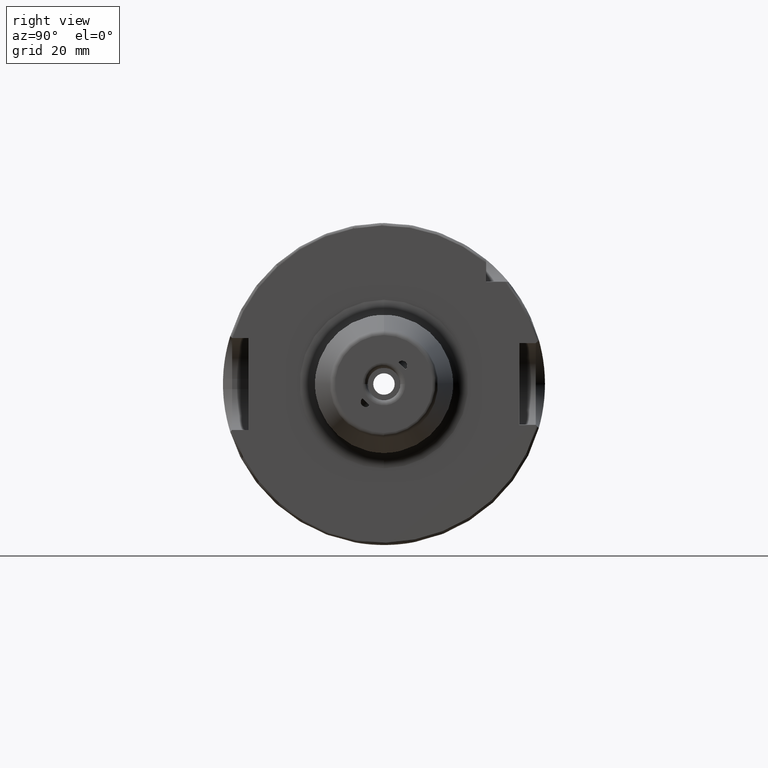
[diagram: clean part render]
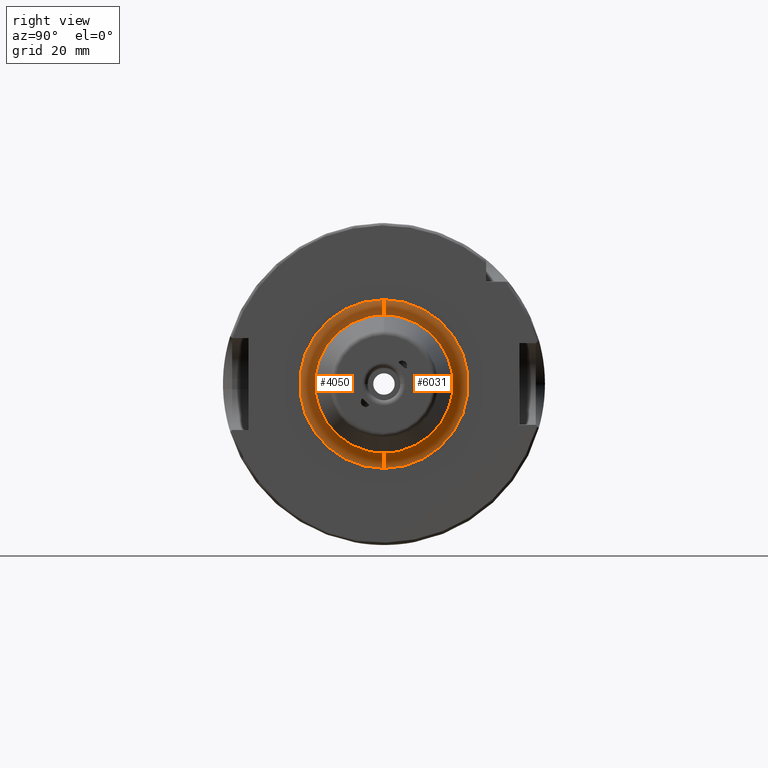
[diagram: same view with one multi-face feature highlighted, each face labeled with its STEP entity id]
A machine part, right view. The highlighted faces form ONE feature: a constant-radius fillet chain: 2 tangent blend faces with common blend radius 3 mm. The faces share edges in the B-rep.
Their STEP definitions:
[1] entity #6031 (Torus):
#643=CARTESIAN_POINT('',(2.9E1,0.E0,0.E0));
#644=DIRECTION('',(1.E0,0.E0,0.E0));
#645=DIRECTION('',(0.E0,0.E0,-1.E0));
#646=AXIS2_PLACEMENT_3D('',#643,#644,#645);
#831=CARTESIAN_POINT('',(2.9E1,8.856360089737E-12,1.65E1));
#832=DIRECTION('',(0.E0,-1.E0,5.367477295959E-13));
#833=DIRECTION('',(-1.E0,0.E0,-6.454096516488E-13));
#834=AXIS2_PLACEMENT_3D('',#831,#832,#833);
#881=CARTESIAN_POINT('',(2.6E1,0.E0,0.E0));
#882=DIRECTION('',(1.E0,0.E0,0.E0));
#883=DIRECTION('',(0.E0,0.E0,-1.E0));
#884=AXIS2_PLACEMENT_3D('',#881,#882,#883);
#2561=CARTESIAN_POINT('',(2.9E1,-8.858414002333E-12,-1.65E1));
#2562=DIRECTION('',(0.E0,1.E0,-5.368726296862E-13));
#2563=DIRECTION('',(-1.E0,0.E0,6.454096516488E-13));
#2564=AXIS2_PLACEMENT_3D('',#2561,#2562,#2563);
#3118=CARTESIAN_POINT('',(2.6E1,0.E0,1.65E1));
#3119=CARTESIAN_POINT('',(2.6E1,0.E0,-1.65E1));
#3120=VERTEX_POINT('',#3118);
#3121=VERTEX_POINT('',#3119);
#3122=CARTESIAN_POINT('',(2.9E1,0.E0,1.35E1));
#3123=CARTESIAN_POINT('',(2.9E1,0.E0,-1.35E1));
#3124=VERTEX_POINT('',#3122);
#3125=VERTEX_POINT('',#3123);
#6020=CARTESIAN_POINT('',(2.9E1,0.E0,0.E0));
#6021=DIRECTION('',(1.E0,0.E0,0.E0));
#6022=DIRECTION('',(0.E0,-1.653192326116E-2,-9.998633384184E-1));
#6023=AXIS2_PLACEMENT_3D('',#6020,#6021,#6022);
#6024=TOROIDAL_SURFACE('',#6023,1.65E1,3.E0);
#6025=ORIENTED_EDGE('',*,*,#4085,.F.);
#6026=ORIENTED_EDGE('',*,*,#4046,.T.);
#6027=ORIENTED_EDGE('',*,*,#3859,.T.);
#6028=ORIENTED_EDGE('',*,*,#4043,.F.);
#6029=EDGE_LOOP('',(#6025,#6026,#6027,#6028));
#6030=FACE_OUTER_BOUND('',#6029,.F.);
#6031=ADVANCED_FACE('',(#6030),#6024,.F.);
#647=CIRCLE('',#646,1.35E1);
#835=CIRCLE('',#834,3.E0);
#885=CIRCLE('',#884,1.65E1);
#2565=CIRCLE('',#2564,3.E0);
#3859=EDGE_CURVE('',#3125,#3124,#647,.T.);
#4043=EDGE_CURVE('',#3120,#3124,#835,.T.);
#4046=EDGE_CURVE('',#3121,#3125,#2565,.T.);
#4085=EDGE_CURVE('',#3121,#3120,#885,.T.);
[2] entity #4050 (Torus):
#762=CARTESIAN_POINT('',(2.9E1,0.E0,0.E0));
#763=DIRECTION('',(1.E0,0.E0,0.E0));
#764=DIRECTION('',(0.E0,0.E0,1.E0));
#765=AXIS2_PLACEMENT_3D('',#762,#763,#764);
#831=CARTESIAN_POINT('',(2.9E1,8.856360089737E-12,1.65E1));
#832=DIRECTION('',(0.E0,-1.E0,5.367477295959E-13));
#833=DIRECTION('',(-1.E0,0.E0,-6.454096516488E-13));
#834=AXIS2_PLACEMENT_3D('',#831,#832,#833);
#876=CARTESIAN_POINT('',(2.6E1,0.E0,0.E0));
#877=DIRECTION('',(1.E0,0.E0,0.E0));
#878=DIRECTION('',(0.E0,0.E0,1.E0));
#879=AXIS2_PLACEMENT_3D('',#876,#877,#878);
#2561=CARTESIAN_POINT('',(2.9E1,-8.858414002333E-12,-1.65E1));
#2562=DIRECTION('',(0.E0,1.E0,-5.368726296862E-13));
#2563=DIRECTION('',(-1.E0,0.E0,6.454096516488E-13));
#2564=AXIS2_PLACEMENT_3D('',#2561,#2562,#2563);
#3118=CARTESIAN_POINT('',(2.6E1,0.E0,1.65E1));
#3119=CARTESIAN_POINT('',(2.6E1,0.E0,-1.65E1));
#3120=VERTEX_POINT('',#3118);
#3121=VERTEX_POINT('',#3119);
#3122=CARTESIAN_POINT('',(2.9E1,0.E0,1.35E1));
#3123=CARTESIAN_POINT('',(2.9E1,0.E0,-1.35E1));
#3124=VERTEX_POINT('',#3122);
#3125=VERTEX_POINT('',#3123);
#4036=CARTESIAN_POINT('',(2.9E1,0.E0,0.E0));
#4037=DIRECTION('',(1.E0,0.E0,0.E0));
#4038=DIRECTION('',(0.E0,1.653192326116E-2,9.998633384184E-1));
#4039=AXIS2_PLACEMENT_3D('',#4036,#4037,#4038);
#4040=TOROIDAL_SURFACE('',#4039,1.65E1,3.E0);
#4042=ORIENTED_EDGE('',*,*,#4041,.F.);
#4044=ORIENTED_EDGE('',*,*,#4043,.T.);
#4045=ORIENTED_EDGE('',*,*,#3972,.T.);
#4047=ORIENTED_EDGE('',*,*,#4046,.F.);
#4048=EDGE_LOOP('',(#4042,#4044,#4045,#4047));
#4049=FACE_OUTER_BOUND('',#4048,.F.);
#4050=ADVANCED_FACE('',(#4049),#4040,.F.);
#766=CIRCLE('',#765,1.35E1);
#835=CIRCLE('',#834,3.E0);
#880=CIRCLE('',#879,1.65E1);
#2565=CIRCLE('',#2564,3.E0);
#3972=EDGE_CURVE('',#3124,#3125,#766,.T.);
#4041=EDGE_CURVE('',#3120,#3121,#880,.T.);
#4043=EDGE_CURVE('',#3120,#3124,#835,.T.);
#4046=EDGE_CURVE('',#3121,#3125,#2565,.T.);